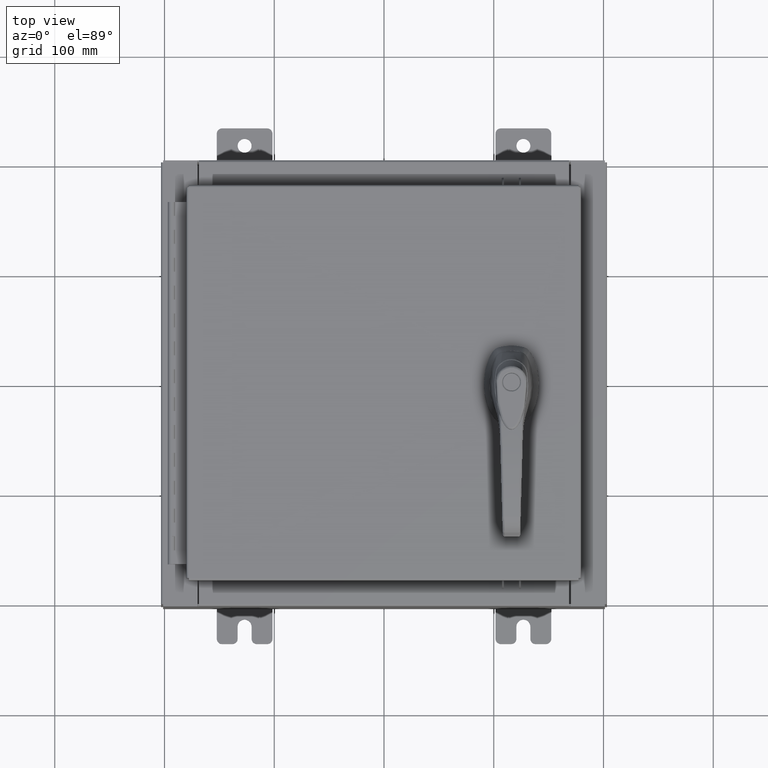
[diagram: clean part render]
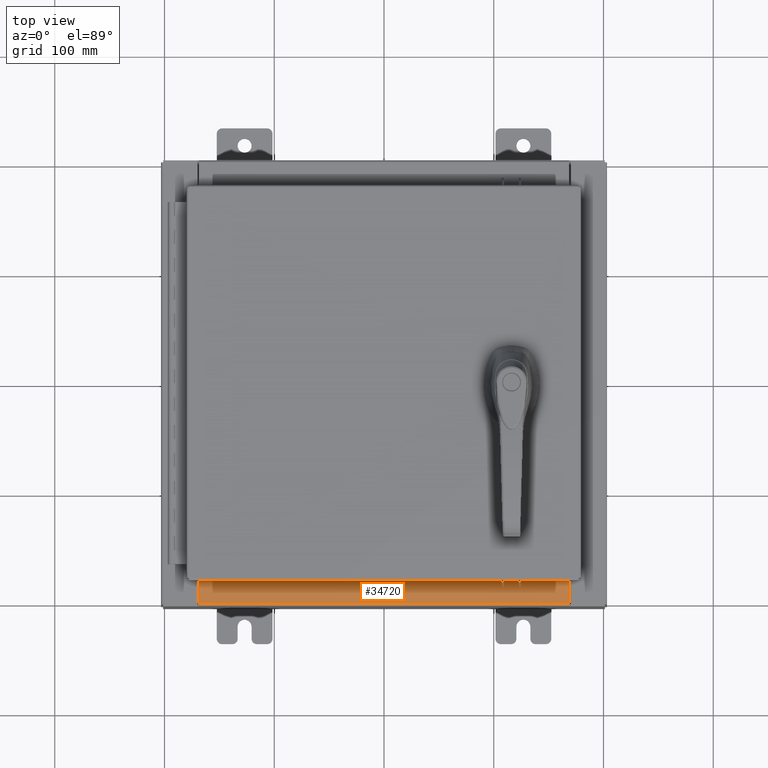
[diagram: same view with one face highlighted and labeled with its STEP entity id]
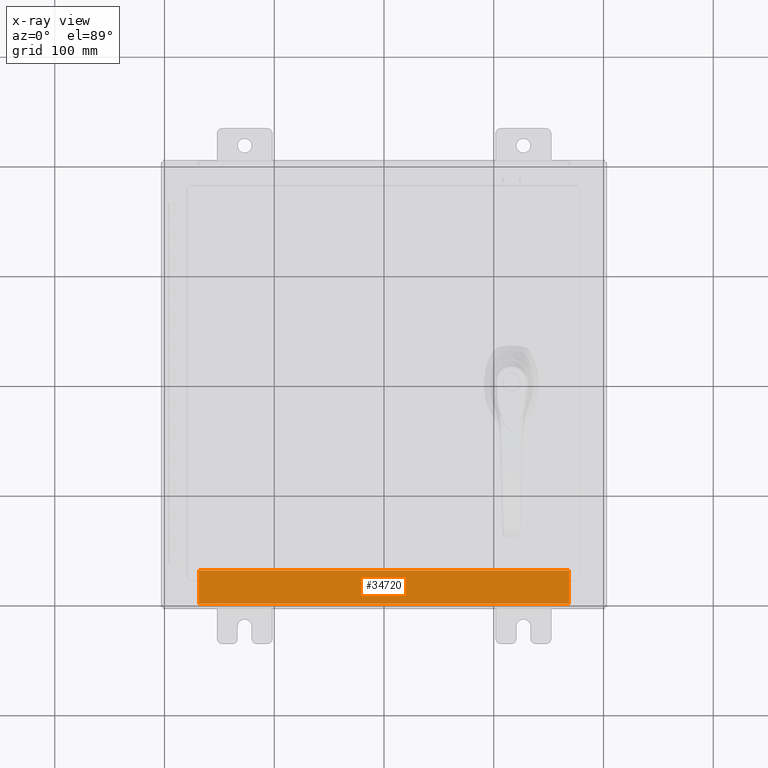
[diagram: x-ray of the same camera — body ghosted, the highlighted face saturated]
A machine part, top view. The second image highlights one B-rep face of the part: STEP entity #34720.
The next image is the same camera in x-ray: the body ghosted, the highlighted face saturated — about 0% of this face is hidden behind the body in this view.
In plain terms, the highlighted planar face has unit normal (-0, -0, 1).
Its self-contained STEP definition (entity closure, byte-faithful):
#3653 = VECTOR ( 'NONE', #25579, 39.37007874015748100 ) ;
#4281 = EDGE_CURVE ( 'NONE', #43488, #45824, #36390, .T. ) ;
#4825 = ORIENTED_EDGE ( 'NONE', *, *, #4281, .F. ) ;
#17195 = CARTESIAN_POINT ( 'NONE',  ( 0.0000000000000000000, -0.08770000000000026400, 3.000000000000001300 ) ) ;
#21730 = CARTESIAN_POINT ( 'NONE',  ( -6.637200000000000000, -1.287299999999999200, 3.000000000000005300 ) ) ;
#23646 = VERTEX_POINT ( 'NONE', #92257 ) ;
#25579 = DIRECTION ( 'NONE',  ( -1.000000000000000000, 0.0000000000000000000, 0.0000000000000000000 ) ) ;
#25729 = LINE ( 'NONE', #17195, #3653 ) ;
#28961 = CARTESIAN_POINT ( 'NONE',  ( 6.637200000000000000, -1.300299999999999800, 3.000000000000005300 ) ) ;
#29646 = AXIS2_PLACEMENT_3D ( 'NONE', #89205, #97137, #105825 ) ;
#30176 = VECTOR ( 'NONE', #70265, 39.37007874015748100 ) ;
#31925 = CARTESIAN_POINT ( 'NONE',  ( 6.637200000000000000, -1.287299999999999900, 3.000000000000005300 ) ) ;
#34720 = ADVANCED_FACE ( 'NONE', ( #43831 ), #97489, .T. ) ;
#35360 = LINE ( 'NONE', #28961, #30176 ) ;
#36390 = LINE ( 'NONE', #38339, #77826 ) ;
#37068 = ORIENTED_EDGE ( 'NONE', *, *, #38812, .F. ) ;
#38339 = CARTESIAN_POINT ( 'NONE',  ( 6.637200000000000900, -1.287299999999999900, 3.000000000000005300 ) ) ;
#38514 = VERTEX_POINT ( 'NONE', #68564 ) ;
#38812 = EDGE_CURVE ( 'NONE', #45824, #23646, #49670, .T. ) ;
#43488 = VERTEX_POINT ( 'NONE', #31925 ) ;
#43831 = FACE_OUTER_BOUND ( 'NONE', #76084, .T. ) ;
#45824 = VERTEX_POINT ( 'NONE', #21730 ) ;
#49013 = DIRECTION ( 'NONE',  ( -0.0000000000000000000, 1.000000000000000000, -3.566381192773190000E-015 ) ) ;
#49670 = LINE ( 'NONE', #98486, #93569 ) ;
#65681 = ORIENTED_EDGE ( 'NONE', *, *, #95918, .F. ) ;
#68564 = CARTESIAN_POINT ( 'NONE',  ( 6.637199999999999100, -0.08769999999999993100, 3.000000000000000900 ) ) ;
#70265 = DIRECTION ( 'NONE',  ( -0.0000000000000000000, -1.000000000000000000, 3.566381192773190000E-015 ) ) ;
#76084 = EDGE_LOOP ( 'NONE', ( #37068, #4825, #65681, #104307 ) ) ;
#77826 = VECTOR ( 'NONE', #88606, 39.37007874015748100 ) ;
#88606 = DIRECTION ( 'NONE',  ( -1.000000000000000000, 0.0000000000000000000, 0.0000000000000000000 ) ) ;
#89205 = CARTESIAN_POINT ( 'NONE',  ( 0.0000000000000000000, 1.069354855923099900E-014, 3.000000000000000900 ) ) ;
#92257 = CARTESIAN_POINT ( 'NONE',  ( -6.637200000000000000, -0.08770000000000026400, 3.000000000000000900 ) ) ;
#93569 = VECTOR ( 'NONE', #49013, 39.37007874015748100 ) ;
#95918 = EDGE_CURVE ( 'NONE', #38514, #43488, #35360, .T. ) ;
#97137 = DIRECTION ( 'NONE',  ( 0.0000000000000000000, 3.566381192773190000E-015, 1.000000000000000000 ) ) ;
#97489 = PLANE ( 'NONE',  #29646 ) ;
#98486 = CARTESIAN_POINT ( 'NONE',  ( -6.637200000000000000, -0.07469999999999973900, 3.000000000000000900 ) ) ;
#102874 = EDGE_CURVE ( 'NONE', #38514, #23646, #25729, .T. ) ;
#104307 = ORIENTED_EDGE ( 'NONE', *, *, #102874, .T. ) ;
#105825 = DIRECTION ( 'NONE',  ( 0.0000000000000000000, -1.000000000000000000, 3.566381192773190000E-015 ) ) ;